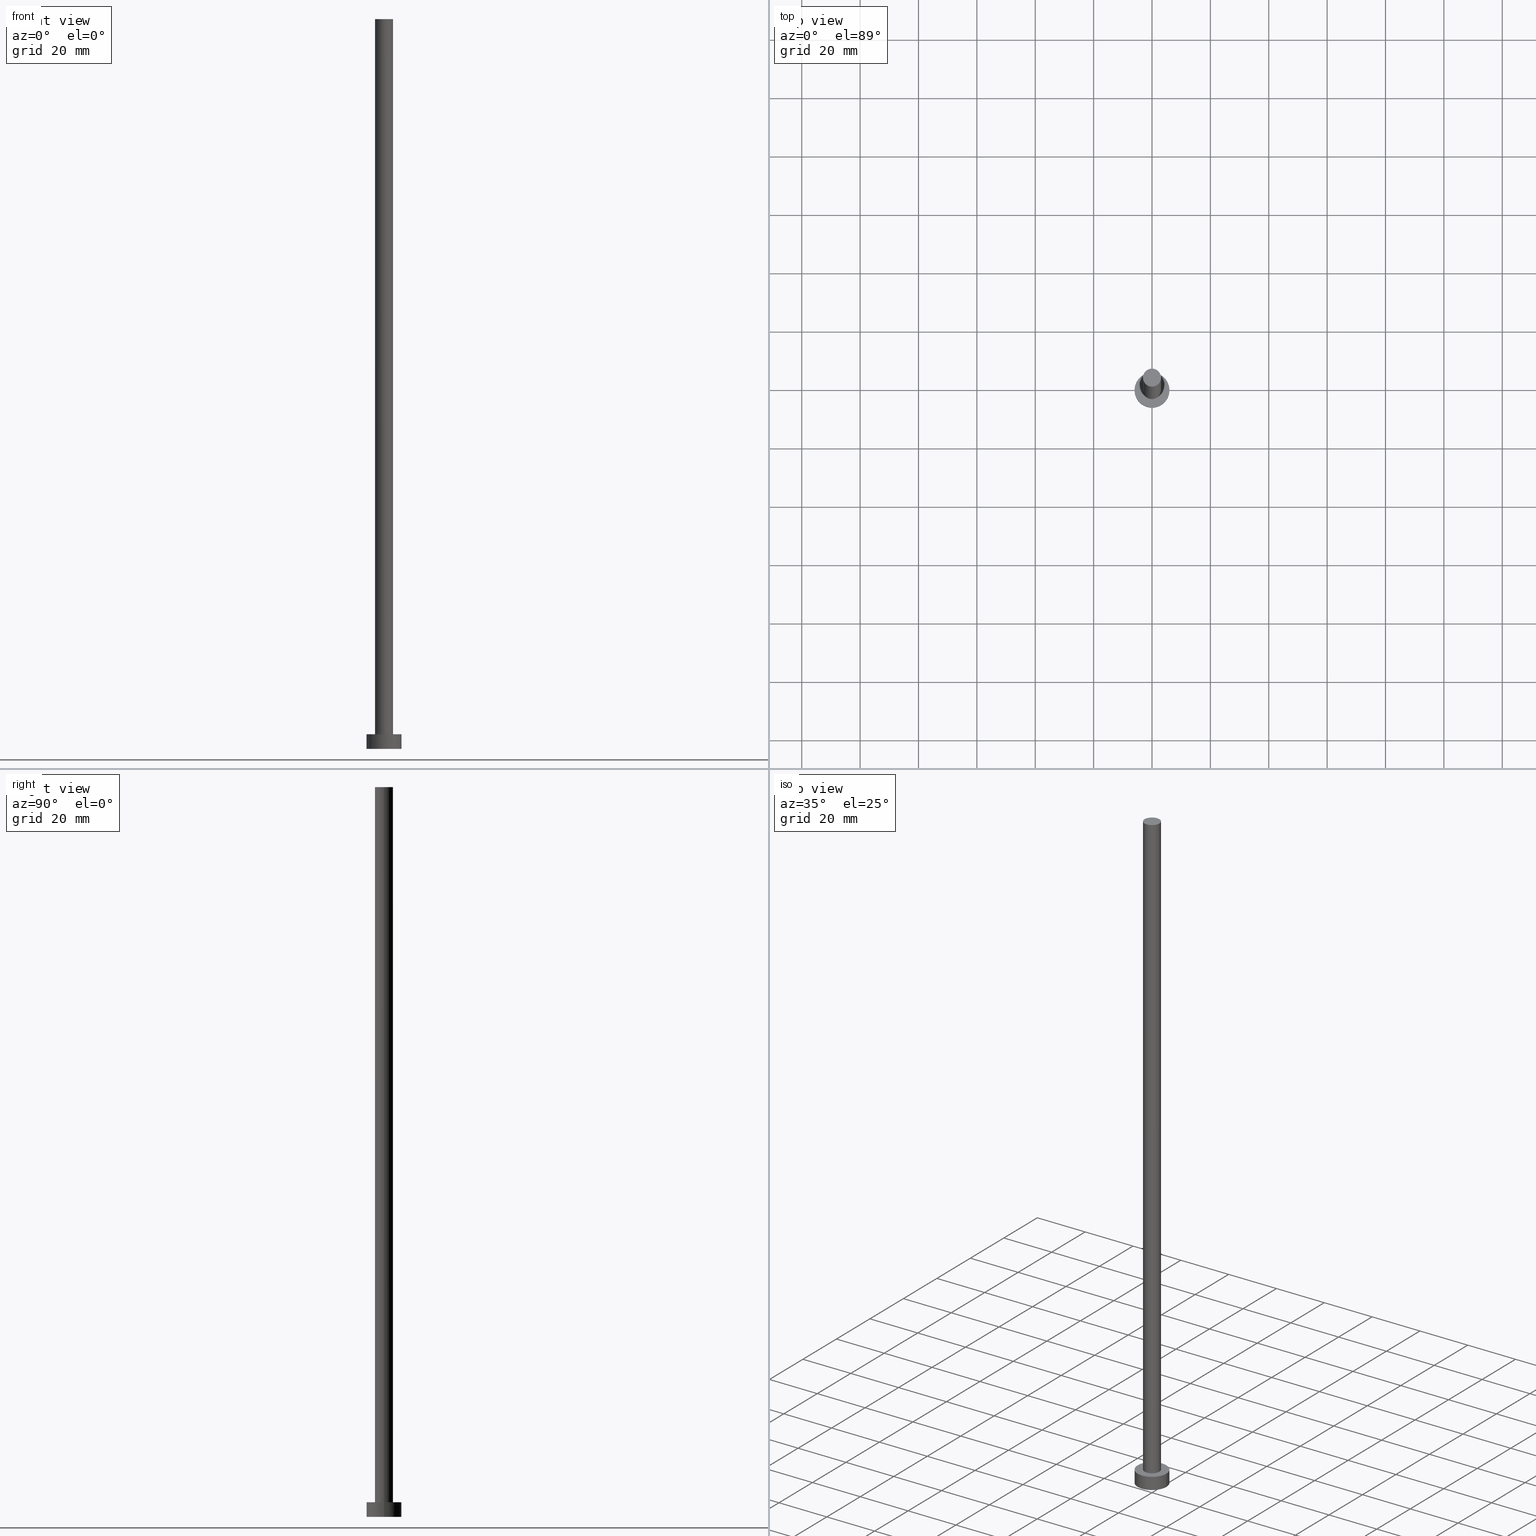
[diagram: canonical four-view strip — front | top / right | iso, engineering-drawing reading convention]
A machine part, canonical four-view strip (front | top / right | iso — engineering-drawing reading convention). The complete STEP part file that produces these views, byte-faithful:
ISO-10303-21;
HEADER;
FILE_DESCRIPTION (( 'STEP AP203' ),
    '1' );
FILE_NAME ('5094.STEP',
    '2023-02-12T12:10:44',
    ( '' ),
    ( '' ),
    'SwSTEP 2.0',
    'SolidWorks 2019',
    '' );
FILE_SCHEMA (( 'CONFIG_CONTROL_DESIGN' ));
ENDSEC;

DATA;
#1 = AXIS2_PLACEMENT_3D ( 'NONE', #212, #58, #207 ) ;
#2 = DATE_TIME_ROLE ( 'classification_date' ) ;
#3 = AXIS2_PLACEMENT_3D ( 'NONE', #172, #74, #15 ) ;
#4 = PERSON_AND_ORGANIZATION ( #82, #220 ) ;
#5 = PERSON_AND_ORGANIZATION ( #82, #220 ) ;
#6 = AXIS2_PLACEMENT_3D ( 'NONE', #175, #9, #228 ) ;
#7 = EDGE_LOOP ( 'NONE', ( #25, #154 ) ) ;
#8 = EDGE_CURVE ( 'NONE', #97, #107, #31, .T. ) ;
#9 = DIRECTION ( 'NONE',  ( 0.000000000000000000, 0.000000000000000000, 1.000000000000000000 ) ) ;
#10 = CARTESIAN_POINT ( 'NONE',  ( 6.000000000000000888, 7.347880794884120722E-16, 5.000000000000000000 ) ) ;
#11 = PLANE ( 'NONE',  #194 ) ;
#12 = LOCAL_TIME ( 13, 10, 44.00000000000000000, #124 ) ;
#13 = ORIENTED_EDGE ( 'NONE', *, *, #176, .T. ) ;
#14 = DIRECTION ( 'NONE',  ( -1.000000000000000000, 0.000000000000000000, 0.000000000000000000 ) ) ;
#15 = DIRECTION ( 'NONE',  ( 1.000000000000000000, 0.000000000000000000, 0.000000000000000000 ) ) ;
#16 = DIRECTION ( 'NONE',  ( -0.000000000000000000, -0.000000000000000000, -1.000000000000000000 ) ) ;
#17 = AXIS2_PLACEMENT_3D ( 'NONE', #189, #16, #149 ) ;
#18 = DIRECTION ( 'NONE',  ( 1.000000000000000000, 0.000000000000000000, 0.000000000000000000 ) ) ;
#19 = LOCAL_TIME ( 13, 10, 44.00000000000000000, #233 ) ;
#20 = APPLICATION_PROTOCOL_DEFINITION ( 'international standard', 'config_control_design', 1994, #48 ) ;
#21 = MECHANICAL_CONTEXT ( 'NONE', #48, 'mechanical' ) ;
#22 = LOCAL_TIME ( 13, 10, 44.00000000000000000, #89 ) ;
#23 = PERSON_AND_ORGANIZATION ( #82, #220 ) ;
#24 = EDGE_CURVE ( 'NONE', #50, #91, #72, .T. ) ;
#25 = ORIENTED_EDGE ( 'NONE', *, *, #214, .T. ) ;
#26 = AXIS2_PLACEMENT_3D ( 'NONE', #170, #131, #14 ) ;
#27 = APPROVAL ( #84, 'NEUR�EN�' ) ;
#28 = ORIENTED_EDGE ( 'NONE', *, *, #243, .F. ) ;
#29 = LINE ( 'NONE', #52, #190 ) ;
#30 = PRODUCT ( '5094', '5094', '', ( #21 ) ) ;
#31 = LINE ( 'NONE', #10, #57 ) ;
#32 = CARTESIAN_POINT ( 'NONE',  ( 0.000000000000000000, 0.000000000000000000, 5.000000000000000000 ) ) ;
#33 = CARTESIAN_POINT ( 'NONE',  ( 0.000000000000000000, 0.000000000000000000, 5.000000000000000000 ) ) ;
#34 = EDGE_CURVE ( 'NONE', #239, #91, #252, .T. ) ;
#35 = CARTESIAN_POINT ( 'NONE',  ( 0.000000000000000000, 0.000000000000000000, 5.000000000000000000 ) ) ;
#36 = DIRECTION ( 'NONE',  ( -1.000000000000000000, 0.000000000000000000, 0.000000000000000000 ) ) ;
#37 = FACE_BOUND ( 'NONE', #224, .T. ) ;
#38 = CYLINDRICAL_SURFACE ( 'NONE', #17, 3.100000000000000089 ) ;
#39 = CC_DESIGN_PERSON_AND_ORGANIZATION_ASSIGNMENT ( #43, #234, ( #119 ) ) ;
#40 =( LENGTH_UNIT ( ) NAMED_UNIT ( * ) SI_UNIT ( .MILLI., .METRE. ) );
#41 = APPROVAL_PERSON_ORGANIZATION ( #5, #27, #45 ) ;
#42 = PERSON_AND_ORGANIZATION ( #82, #220 ) ;
#43 = PERSON_AND_ORGANIZATION ( #82, #220 ) ;
#44 = AXIS2_PLACEMENT_3D ( 'NONE', #33, #111, #59 ) ;
#45 = APPROVAL_ROLE ( '' ) ;
#46 = EDGE_LOOP ( 'NONE', ( #28, #53, #133, #167 ) ) ;
#47 = CC_DESIGN_DATE_AND_TIME_ASSIGNMENT ( #143, #200, ( #83 ) ) ;
#48 = APPLICATION_CONTEXT ( 'configuration controlled 3d designs of mechanical parts and assemblies' ) ;
#49 = CIRCLE ( 'NONE', #6, 6.000000000000000888 ) ;
#50 = VERTEX_POINT ( 'NONE', #156 ) ;
#51 = APPROVAL_PERSON_ORGANIZATION ( #86, #128, #216 ) ;
#52 = CARTESIAN_POINT ( 'NONE',  ( -6.000000000000000888, 0.000000000000000000, 5.000000000000000000 ) ) ;
#53 = ORIENTED_EDGE ( 'NONE', *, *, #120, .T. ) ;
#54 = DIRECTION ( 'NONE',  ( 0.000000000000000000, 0.000000000000000000, 1.000000000000000000 ) ) ;
#55 = CARTESIAN_POINT ( 'NONE',  ( 6.000000000000000888, 7.347880794884120722E-16, 5.000000000000000000 ) ) ;
#56 = EDGE_LOOP ( 'NONE', ( #187, #123 ) ) ;
#57 = VECTOR ( 'NONE', #169, 1000.000000000000000 ) ;
#58 = DIRECTION ( 'NONE',  ( 0.000000000000000000, 0.000000000000000000, 1.000000000000000000 ) ) ;
#59 = DIRECTION ( 'NONE',  ( 1.000000000000000000, 0.000000000000000000, 0.000000000000000000 ) ) ;
#60 = CYLINDRICAL_SURFACE ( 'NONE', #26, 6.000000000000000888 ) ;
#61 = DIRECTION ( 'NONE',  ( 1.000000000000000000, 0.000000000000000000, 0.000000000000000000 ) ) ;
#62 = LOCAL_TIME ( 13, 10, 44.00000000000000000, #85 ) ;
#63 = CALENDAR_DATE ( 2023, 12, 2 ) ;
#64 = DATE_AND_TIME ( #102, #62 ) ;
#65 = CC_DESIGN_PERSON_AND_ORGANIZATION_ASSIGNMENT ( #181, #145, ( #30 ) ) ;
#66 = APPLICATION_PROTOCOL_DEFINITION ( 'international standard', 'config_control_design', 1994, #230 ) ;
#67 = CIRCLE ( 'NONE', #3, 3.100000000000000089 ) ;
#68 = ORIENTED_EDGE ( 'NONE', *, *, #116, .T. ) ;
#69 = CIRCLE ( 'NONE', #180, 6.000000000000000888 ) ;
#70 = ORIENTED_EDGE ( 'NONE', *, *, #116, .F. ) ;
#71 = CARTESIAN_POINT ( 'NONE',  ( 3.100000000000000089, 3.796405077356794918E-16, 250.0000000000000000 ) ) ;
#72 = LINE ( 'NONE', #151, #206 ) ;
#73 = FACE_OUTER_BOUND ( 'NONE', #183, .T. ) ;
#74 = DIRECTION ( 'NONE',  ( 0.000000000000000000, 0.000000000000000000, 1.000000000000000000 ) ) ;
#75 = ORIENTED_EDGE ( 'NONE', *, *, #34, .F. ) ;
#76 = DIRECTION ( 'NONE',  ( 0.000000000000000000, 0.000000000000000000, 1.000000000000000000 ) ) ;
#77 = LOCAL_TIME ( 13, 10, 44.00000000000000000, #121 ) ;
#78 = CC_DESIGN_PERSON_AND_ORGANIZATION_ASSIGNMENT ( #42, #255, ( #119 ) ) ;
#79 = CIRCLE ( 'NONE', #81, 3.100000000000000089 ) ;
#80 = ADVANCED_FACE ( 'NONE', ( #37, #135 ), #227, .T. ) ;
#81 = AXIS2_PLACEMENT_3D ( 'NONE', #96, #202, #99 ) ;
#82 = PERSON ( 'NEUR�EN�', 'NEUR�EN�', 'NEUR�EN�', ('NEUR�EN�'), ('NEUR�EN�'), ('NEUR�EN�') ) ;
#83 = PRODUCT_DEFINITION ( 'NEZN�M�', '', #119, #100 ) ;
#84 = APPROVAL_STATUS ( 'not_yet_approved' ) ;
#85 = COORDINATED_UNIVERSAL_TIME_OFFSET ( 1, 0, .AHEAD. ) ;
#86 = PERSON_AND_ORGANIZATION ( #82, #220 ) ;
#87 = EDGE_CURVE ( 'NONE', #107, #241, #49, .T. ) ;
#88 = CC_DESIGN_SECURITY_CLASSIFICATION ( #144, ( #119 ) ) ;
#89 = COORDINATED_UNIVERSAL_TIME_OFFSET ( 1, 0, .AHEAD. ) ;
#90 = ORIENTED_EDGE ( 'NONE', *, *, #101, .T. ) ;
#91 = VERTEX_POINT ( 'NONE', #247 ) ;
#92 = DIRECTION ( 'NONE',  ( -0.000000000000000000, -0.000000000000000000, -1.000000000000000000 ) ) ;
#93 = ORIENTED_EDGE ( 'NONE', *, *, #8, .F. ) ;
#94 = CIRCLE ( 'NONE', #161, 6.000000000000000888 ) ;
#95 = CARTESIAN_POINT ( 'NONE',  ( 0.000000000000000000, 0.000000000000000000, 0.000000000000000000 ) ) ;
#96 = CARTESIAN_POINT ( 'NONE',  ( 0.000000000000000000, 0.000000000000000000, 5.000000000000000000 ) ) ;
#97 = VERTEX_POINT ( 'NONE', #55 ) ;
#98 = CARTESIAN_POINT ( 'NONE',  ( 3.100000000000000089, 3.796405077356794918E-16, 5.000000000000000000 ) ) ;
#99 = DIRECTION ( 'NONE',  ( 1.000000000000000000, 0.000000000000000000, 0.000000000000000000 ) ) ;
#100 = DESIGN_CONTEXT ( 'detailed design', #230, 'design' ) ;
#101 = EDGE_CURVE ( 'NONE', #129, #241, #29, .T. ) ;
#102 = CALENDAR_DATE ( 2023, 12, 2 ) ;
#103 = CC_DESIGN_APPROVAL ( #27, ( #119 ) ) ;
#104 = APPROVAL_ROLE ( '' ) ;
#105 = ORIENTED_EDGE ( 'NONE', *, *, #171, .F. ) ;
#106 = APPROVAL_DATE_TIME ( #138, #254 ) ;
#107 = VERTEX_POINT ( 'NONE', #251 ) ;
#108 = DIRECTION ( 'NONE',  ( 1.000000000000000000, 0.000000000000000000, -0.000000000000000000 ) ) ;
#109 = EDGE_CURVE ( 'NONE', #97, #129, #69, .T. ) ;
#110 = DIRECTION ( 'NONE',  ( 0.000000000000000000, 0.000000000000000000, 1.000000000000000000 ) ) ;
#111 = DIRECTION ( 'NONE',  ( 0.000000000000000000, 0.000000000000000000, 1.000000000000000000 ) ) ;
#112 = FACE_OUTER_BOUND ( 'NONE', #46, .T. ) ;
#113 = ORIENTED_EDGE ( 'NONE', *, *, #87, .T. ) ;
#114 = FACE_OUTER_BOUND ( 'NONE', #201, .T. ) ;
#115 = DIRECTION ( 'NONE',  ( 1.000000000000000000, 0.000000000000000000, -0.000000000000000000 ) ) ;
#116 = EDGE_CURVE ( 'NONE', #91, #239, #79, .T. ) ;
#117 = CALENDAR_DATE ( 2023, 12, 2 ) ;
#118 = PERSON_AND_ORGANIZATION_ROLE ( 'classification_officer' ) ;
#119 = PRODUCT_DEFINITION_FORMATION_WITH_SPECIFIED_SOURCE ( 'LIBOVOLN�', '', #30, .NOT_KNOWN. ) ;
#120 = EDGE_CURVE ( 'NONE', #199, #239, #168, .T. ) ;
#121 = COORDINATED_UNIVERSAL_TIME_OFFSET ( 1, 0, .AHEAD. ) ;
#122 = PRODUCT_DEFINITION_SHAPE ( 'NONE', 'NONE',  #83 ) ;
#123 = ORIENTED_EDGE ( 'NONE', *, *, #109, .T. ) ;
#124 = COORDINATED_UNIVERSAL_TIME_OFFSET ( 1, 0, .AHEAD. ) ;
#125 = ORIENTED_EDGE ( 'NONE', *, *, #176, .F. ) ;
#126 = CC_DESIGN_APPROVAL ( #128, ( #83 ) ) ;
#127 = CARTESIAN_POINT ( 'NONE',  ( 0.000000000000000000, 0.000000000000000000, 250.0000000000000000 ) ) ;
#128 = APPROVAL ( #235, 'NEUR�EN�' ) ;
#129 = VERTEX_POINT ( 'NONE', #174 ) ;
#130 = DIRECTION ( 'NONE',  ( 1.000000000000000000, 0.000000000000000000, 0.000000000000000000 ) ) ;
#131 = DIRECTION ( 'NONE',  ( -0.000000000000000000, -0.000000000000000000, -1.000000000000000000 ) ) ;
#132 = CLOSED_SHELL ( 'NONE', ( #164, #141, #209, #80, #196, #240, #153 ) ) ;
#133 = ORIENTED_EDGE ( 'NONE', *, *, #34, .T. ) ;
#134 = CYLINDRICAL_SURFACE ( 'NONE', #236, 6.000000000000000888 ) ;
#135 = FACE_OUTER_BOUND ( 'NONE', #56, .T. ) ;
#136 = FACE_OUTER_BOUND ( 'NONE', #245, .T. ) ;
#137 = AXIS2_PLACEMENT_3D ( 'NONE', #186, #221, #36 ) ;
#138 = DATE_AND_TIME ( #63, #19 ) ;
#139 = ADVANCED_BREP_SHAPE_REPRESENTATION ( '5094', ( #195, #231 ), #158 ) ;
#140 = CALENDAR_DATE ( 2023, 12, 2 ) ;
#141 = ADVANCED_FACE ( 'NONE', ( #73 ), #134, .T. ) ;
#142 = VECTOR ( 'NONE', #249, 1000.000000000000000 ) ;
#143 = DATE_AND_TIME ( #117, #22 ) ;
#144 = SECURITY_CLASSIFICATION ( '', '', #179 ) ;
#145 = PERSON_AND_ORGANIZATION_ROLE ( 'design_owner' ) ;
#146 = CALENDAR_DATE ( 2023, 12, 2 ) ;
#147 = ORIENTED_EDGE ( 'NONE', *, *, #101, .F. ) ;
#148 = CC_DESIGN_DATE_AND_TIME_ASSIGNMENT ( #238, #2, ( #144 ) ) ;
#149 = DIRECTION ( 'NONE',  ( -1.000000000000000000, 0.000000000000000000, 0.000000000000000000 ) ) ;
#150 = CYLINDRICAL_SURFACE ( 'NONE', #137, 3.100000000000000089 ) ;
#151 = CARTESIAN_POINT ( 'NONE',  ( -3.100000000000000089, 0.000000000000000000, 250.0000000000000000 ) ) ;
#152 = DIRECTION ( 'NONE',  ( 1.000000000000000000, 0.000000000000000000, 0.000000000000000000 ) ) ;
#153 = ADVANCED_FACE ( 'NONE', ( #244 ), #210, .T. ) ;
#154 = ORIENTED_EDGE ( 'NONE', *, *, #243, .T. ) ;
#155 = DIRECTION ( 'NONE',  ( -0.000000000000000000, -0.000000000000000000, -1.000000000000000000 ) ) ;
#156 = CARTESIAN_POINT ( 'NONE',  ( -3.100000000000000089, 0.000000000000000000, 250.0000000000000000 ) ) ;
#157 = DIRECTION ( 'NONE',  ( 0.000000000000000000, 0.000000000000000000, 1.000000000000000000 ) ) ;
#158 =( GEOMETRIC_REPRESENTATION_CONTEXT ( 3 ) GLOBAL_UNCERTAINTY_ASSIGNED_CONTEXT ( ( #191 ) ) GLOBAL_UNIT_ASSIGNED_CONTEXT ( ( #40, #177, #193 ) ) REPRESENTATION_CONTEXT ( 'NONE', 'WORKASPACE' ) );
#159 = CARTESIAN_POINT ( 'NONE',  ( 0.000000000000000000, 0.000000000000000000, 0.000000000000000000 ) ) ;
#160 = AXIS2_PLACEMENT_3D ( 'NONE', #211, #188, #108 ) ;
#161 = AXIS2_PLACEMENT_3D ( 'NONE', #204, #76, #152 ) ;
#162 = APPROVAL_DATE_TIME ( #237, #27 ) ;
#163 = CC_DESIGN_APPROVAL ( #254, ( #144 ) ) ;
#164 = ADVANCED_FACE ( 'NONE', ( #112 ), #150, .T. ) ;
#165 = APPROVAL_STATUS ( 'not_yet_approved' ) ;
#166 = ORIENTED_EDGE ( 'NONE', *, *, #87, .F. ) ;
#167 = ORIENTED_EDGE ( 'NONE', *, *, #24, .F. ) ;
#168 = LINE ( 'NONE', #71, #142 ) ;
#169 = DIRECTION ( 'NONE',  ( -0.000000000000000000, -0.000000000000000000, -1.000000000000000000 ) ) ;
#170 = CARTESIAN_POINT ( 'NONE',  ( 0.000000000000000000, 0.000000000000000000, 5.000000000000000000 ) ) ;
#171 = EDGE_CURVE ( 'NONE', #129, #97, #242, .T. ) ;
#172 = CARTESIAN_POINT ( 'NONE',  ( 0.000000000000000000, 0.000000000000000000, 250.0000000000000000 ) ) ;
#173 = ORIENTED_EDGE ( 'NONE', *, *, #24, .T. ) ;
#174 = CARTESIAN_POINT ( 'NONE',  ( -6.000000000000000888, 0.000000000000000000, 5.000000000000000000 ) ) ;
#175 = CARTESIAN_POINT ( 'NONE',  ( 0.000000000000000000, 0.000000000000000000, 0.000000000000000000 ) ) ;
#176 = EDGE_CURVE ( 'NONE', #241, #107, #94, .T. ) ;
#177 =( NAMED_UNIT ( * ) PLANE_ANGLE_UNIT ( ) SI_UNIT ( $, .RADIAN. ) );
#178 = PRODUCT_RELATED_PRODUCT_CATEGORY ( 'detail', '', ( #30 ) ) ;
#179 = SECURITY_CLASSIFICATION_LEVEL ( 'unclassified' ) ;
#180 = AXIS2_PLACEMENT_3D ( 'NONE', #35, #110, #225 ) ;
#181 = PERSON_AND_ORGANIZATION ( #82, #220 ) ;
#182 = DIRECTION ( 'NONE',  ( -1.000000000000000000, 0.000000000000000000, 0.000000000000000000 ) ) ;
#183 = EDGE_LOOP ( 'NONE', ( #185, #248, #113, #147 ) ) ;
#184 = FACE_OUTER_BOUND ( 'NONE', #203, .T. ) ;
#185 = ORIENTED_EDGE ( 'NONE', *, *, #109, .F. ) ;
#186 = CARTESIAN_POINT ( 'NONE',  ( 0.000000000000000000, 0.000000000000000000, 250.0000000000000000 ) ) ;
#187 = ORIENTED_EDGE ( 'NONE', *, *, #171, .T. ) ;
#188 = DIRECTION ( 'NONE',  ( 0.000000000000000000, 0.000000000000000000, 1.000000000000000000 ) ) ;
#189 = CARTESIAN_POINT ( 'NONE',  ( 0.000000000000000000, 0.000000000000000000, 250.0000000000000000 ) ) ;
#190 = VECTOR ( 'NONE', #92, 1000.000000000000000 ) ;
#191 = UNCERTAINTY_MEASURE_WITH_UNIT (LENGTH_MEASURE( 1.000000000000000082E-05 ), #40, 'distance_accuracy_value', 'NONE');
#192 = CC_DESIGN_PERSON_AND_ORGANIZATION_ASSIGNMENT ( #23, #215, ( #83 ) ) ;
#193 =( NAMED_UNIT ( * ) SI_UNIT ( $, .STERADIAN. ) SOLID_ANGLE_UNIT ( ) );
#194 = AXIS2_PLACEMENT_3D ( 'NONE', #95, #157, #115 ) ;
#195 = MANIFOLD_SOLID_BREP ( 'P�idat vysunut�m3', #132 ) ;
#196 = ADVANCED_FACE ( 'NONE', ( #184 ), #11, .F. ) ;
#197 = PERSON_AND_ORGANIZATION ( #82, #220 ) ;
#198 = SHAPE_DEFINITION_REPRESENTATION ( #122, #139 ) ;
#199 = VERTEX_POINT ( 'NONE', #246 ) ;
#200 = DATE_TIME_ROLE ( 'creation_date' ) ;
#201 = EDGE_LOOP ( 'NONE', ( #93, #105, #90, #13 ) ) ;
#202 = DIRECTION ( 'NONE',  ( 0.000000000000000000, 0.000000000000000000, 1.000000000000000000 ) ) ;
#203 = EDGE_LOOP ( 'NONE', ( #125, #166 ) ) ;
#204 = CARTESIAN_POINT ( 'NONE',  ( 0.000000000000000000, 0.000000000000000000, 0.000000000000000000 ) ) ;
#205 = DIRECTION ( 'NONE',  ( -0.000000000000000000, -0.000000000000000000, -1.000000000000000000 ) ) ;
#206 = VECTOR ( 'NONE', #205, 1000.000000000000000 ) ;
#207 = DIRECTION ( 'NONE',  ( 1.000000000000000000, 0.000000000000000000, -0.000000000000000000 ) ) ;
#208 = ORIENTED_EDGE ( 'NONE', *, *, #120, .F. ) ;
#209 = ADVANCED_FACE ( 'NONE', ( #114 ), #60, .T. ) ;
#210 = PLANE ( 'NONE',  #1 ) ;
#211 = CARTESIAN_POINT ( 'NONE',  ( 0.000000000000000000, 0.000000000000000000, 5.000000000000000000 ) ) ;
#212 = CARTESIAN_POINT ( 'NONE',  ( 0.000000000000000000, 0.000000000000000000, 250.0000000000000000 ) ) ;
#213 = APPROVAL_PERSON_ORGANIZATION ( #197, #254, #104 ) ;
#214 = EDGE_CURVE ( 'NONE', #50, #199, #67, .T. ) ;
#215 = PERSON_AND_ORGANIZATION_ROLE ( 'creator' ) ;
#216 = APPROVAL_ROLE ( '' ) ;
#217 = ORIENTED_EDGE ( 'NONE', *, *, #214, .F. ) ;
#218 = APPROVAL_DATE_TIME ( #64, #128 ) ;
#219 = CARTESIAN_POINT ( 'NONE',  ( -6.000000000000000888, 0.000000000000000000, 0.000000000000000000 ) ) ;
#220 = ORGANIZATION ( 'NEUR�EN�', 'NEUR�EN�', '' ) ;
#221 = DIRECTION ( 'NONE',  ( -0.000000000000000000, -0.000000000000000000, -1.000000000000000000 ) ) ;
#222 = CC_DESIGN_PERSON_AND_ORGANIZATION_ASSIGNMENT ( #4, #118, ( #144 ) ) ;
#223 = CARTESIAN_POINT ( 'NONE',  ( 0.000000000000000000, 0.000000000000000000, 5.000000000000000000 ) ) ;
#224 = EDGE_LOOP ( 'NONE', ( #70, #75 ) ) ;
#225 = DIRECTION ( 'NONE',  ( 1.000000000000000000, 0.000000000000000000, 0.000000000000000000 ) ) ;
#226 = CIRCLE ( 'NONE', #250, 3.100000000000000089 ) ;
#227 = PLANE ( 'NONE',  #160 ) ;
#228 = DIRECTION ( 'NONE',  ( 1.000000000000000000, 0.000000000000000000, 0.000000000000000000 ) ) ;
#229 = DIRECTION ( 'NONE',  ( 0.000000000000000000, 0.000000000000000000, 1.000000000000000000 ) ) ;
#230 = APPLICATION_CONTEXT ( 'configuration controlled 3d designs of mechanical parts and assemblies' ) ;
#231 = AXIS2_PLACEMENT_3D ( 'NONE', #159, #232, #61 ) ;
#232 = DIRECTION ( 'NONE',  ( 0.000000000000000000, 0.000000000000000000, 1.000000000000000000 ) ) ;
#233 = COORDINATED_UNIVERSAL_TIME_OFFSET ( 1, 0, .AHEAD. ) ;
#234 = PERSON_AND_ORGANIZATION_ROLE ( 'design_supplier' ) ;
#235 = APPROVAL_STATUS ( 'not_yet_approved' ) ;
#236 = AXIS2_PLACEMENT_3D ( 'NONE', #223, #155, #182 ) ;
#237 = DATE_AND_TIME ( #140, #12 ) ;
#238 = DATE_AND_TIME ( #146, #77 ) ;
#239 = VERTEX_POINT ( 'NONE', #98 ) ;
#240 = ADVANCED_FACE ( 'NONE', ( #136 ), #38, .T. ) ;
#241 = VERTEX_POINT ( 'NONE', #219 ) ;
#242 = CIRCLE ( 'NONE', #253, 6.000000000000000888 ) ;
#243 = EDGE_CURVE ( 'NONE', #199, #50, #226, .T. ) ;
#244 = FACE_OUTER_BOUND ( 'NONE', #7, .T. ) ;
#245 = EDGE_LOOP ( 'NONE', ( #208, #217, #173, #68 ) ) ;
#246 = CARTESIAN_POINT ( 'NONE',  ( 3.100000000000000089, 3.796405077356794918E-16, 250.0000000000000000 ) ) ;
#247 = CARTESIAN_POINT ( 'NONE',  ( -3.100000000000000089, 0.000000000000000000, 5.000000000000000000 ) ) ;
#248 = ORIENTED_EDGE ( 'NONE', *, *, #8, .T. ) ;
#249 = DIRECTION ( 'NONE',  ( -0.000000000000000000, -0.000000000000000000, -1.000000000000000000 ) ) ;
#250 = AXIS2_PLACEMENT_3D ( 'NONE', #127, #229, #18 ) ;
#251 = CARTESIAN_POINT ( 'NONE',  ( 6.000000000000000888, 7.347880794884120722E-16, 0.000000000000000000 ) ) ;
#252 = CIRCLE ( 'NONE', #44, 3.100000000000000089 ) ;
#253 = AXIS2_PLACEMENT_3D ( 'NONE', #32, #54, #130 ) ;
#254 = APPROVAL ( #165, 'NEUR�EN�' ) ;
#255 = PERSON_AND_ORGANIZATION_ROLE ( 'creator' ) ;
ENDSEC;
END-ISO-10303-21;
